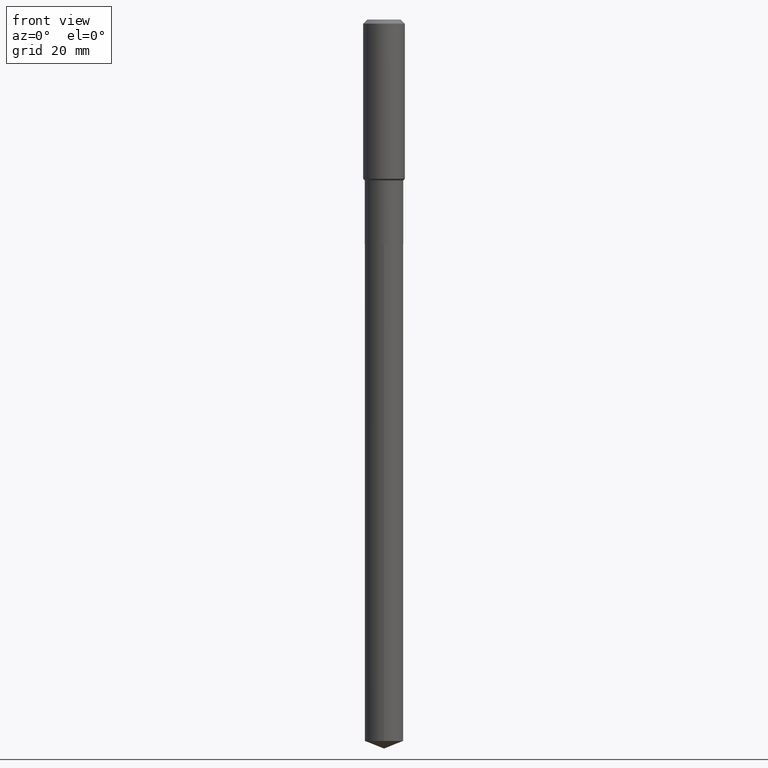
[diagram: clean part render]
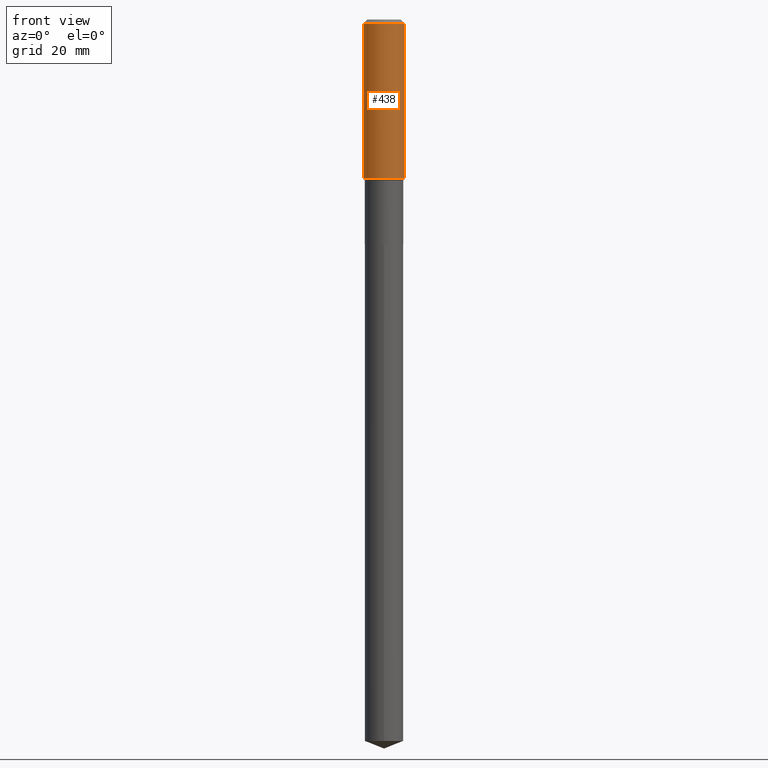
[diagram: same view with one face highlighted and labeled with its STEP entity id]
A machine part, front view. The second image highlights one B-rep face of the part: STEP entity #438.
In plain terms, the highlighted cylindrical surface (edge-blend (fillet) strip) has radius 5.9995 mm, axis along (-0, 0, 1).
Its self-contained STEP definition (entity closure, byte-faithful):
#6 = CIRCLE ( 'NONE', #78, 0.2362000000000002153 ) ;
#7 = VERTEX_POINT ( 'NONE', #358 ) ;
#60 = DIRECTION ( 'NONE',  ( -2.445468806185136877E-29, 3.491481338843145188E-15, 1.000000000000000000 ) ) ;
#66 = LINE ( 'NONE', #391, #407 ) ;
#70 = CYLINDRICAL_SURFACE ( 'NONE', #239, 0.2362000000000001043 ) ;
#71 = DIRECTION ( 'NONE',  ( -2.445468806185136597E-29, 3.491481338843145583E-15, 1.000000000000000000 ) ) ;
#78 = AXIS2_PLACEMENT_3D ( 'NONE', #219, #413, #218 ) ;
#105 = VECTOR ( 'NONE', #131, 39.37007874015748143 ) ;
#114 = CARTESIAN_POINT ( 'NONE',  ( -0.2361999999999999933, -1.558632949969428788E-15, -0.04724000000000027483 ) ) ;
#127 = CARTESIAN_POINT ( 'NONE',  ( 1.155239464041865331E-30, -1.649375784469511612E-16, -0.04724000000000027483 ) ) ;
#131 = DIRECTION ( 'NONE',  ( -2.445468806185136877E-29, 3.491481338843145188E-15, 1.000000000000000000 ) ) ;
#139 = CIRCLE ( 'NONE', #414, 0.2361999999999999933 ) ;
#171 = FACE_OUTER_BOUND ( 'NONE', #200, .T. ) ;
#193 = VERTEX_POINT ( 'NONE', #348 ) ;
#200 = EDGE_LOOP ( 'NONE', ( #386, #473, #203, #313 ) ) ;
#201 = EDGE_CURVE ( 'NONE', #482, #228, #139, .T. ) ;
#203 = ORIENTED_EDGE ( 'NONE', *, *, #360, .T. ) ;
#218 = DIRECTION ( 'NONE',  ( 1.000000000000000000, -6.982962677686266711E-15, 0.000000000000000000 ) ) ;
#219 = CARTESIAN_POINT ( 'NONE',  ( 4.418839859336232115E-29, -6.308932205222621422E-15, -1.806950000000000056 ) ) ;
#227 = DIRECTION ( 'NONE',  ( -2.445468806185136597E-29, 3.491481338843145583E-15, 1.000000000000000000 ) ) ;
#228 = VERTEX_POINT ( 'NONE', #274 ) ;
#231 = DIRECTION ( 'NONE',  ( 1.000000000000000000, -6.982962677686266711E-15, 0.000000000000000000 ) ) ;
#239 = AXIS2_PLACEMENT_3D ( 'NONE', #328, #71, #479 ) ;
#274 = CARTESIAN_POINT ( 'NONE',  ( 0.2361999999999999933, -1.814313362916447440E-15, -0.04724000000000027483 ) ) ;
#280 = LINE ( 'NONE', #443, #105 ) ;
#313 = ORIENTED_EDGE ( 'NONE', *, *, #201, .F. ) ;
#328 = CARTESIAN_POINT ( 'NONE',  ( 0.000000000000000000, 0.000000000000000000, 0.000000000000000000 ) ) ;
#335 = EDGE_CURVE ( 'NONE', #7, #482, #66, .T. ) ;
#348 = CARTESIAN_POINT ( 'NONE',  ( 0.2362000000000002153, -7.958307989692118736E-15, -1.806950000000000056 ) ) ;
#358 = CARTESIAN_POINT ( 'NONE',  ( -0.2362000000000002153, -4.630630263357264239E-15, -1.806950000000000056 ) ) ;
#360 = EDGE_CURVE ( 'NONE', #193, #228, #280, .T. ) ;
#386 = ORIENTED_EDGE ( 'NONE', *, *, #335, .F. ) ;
#391 = CARTESIAN_POINT ( 'NONE',  ( -0.2362000000000001043, 1.678301941865357380E-15, -1.161852468318209317E-29 ) ) ;
#407 = VECTOR ( 'NONE', #60, 39.37007874015748143 ) ;
#413 = DIRECTION ( 'NONE',  ( -2.445468806185136597E-29, 3.491481338843145583E-15, 1.000000000000000000 ) ) ;
#414 = AXIS2_PLACEMENT_3D ( 'NONE', #127, #227, #231 ) ;
#438 = ADVANCED_FACE ( 'NONE', ( #171 ), #70, .T. ) ;
#443 = CARTESIAN_POINT ( 'NONE',  ( 0.2362000000000001043, -1.649375784469496920E-15, 1.151752954443000508E-29 ) ) ;
#455 = EDGE_CURVE ( 'NONE', #7, #193, #6, .T. ) ;
#473 = ORIENTED_EDGE ( 'NONE', *, *, #455, .T. ) ;
#479 = DIRECTION ( 'NONE',  ( 1.000000000000000000, -6.982962677686266711E-15, 4.876176775795935793E-29 ) ) ;
#482 = VERTEX_POINT ( 'NONE', #114 ) ;